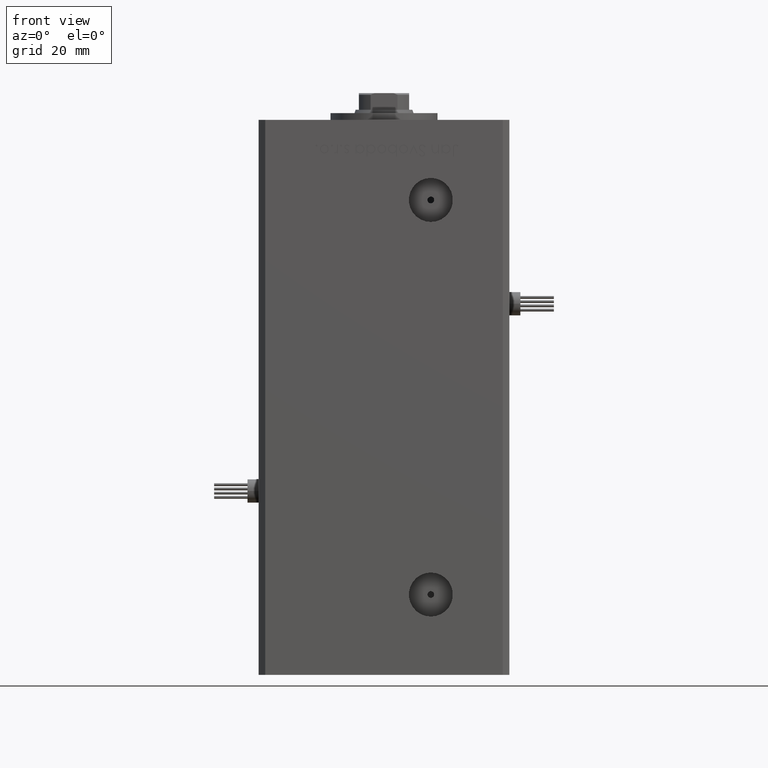
[diagram: clean part render]
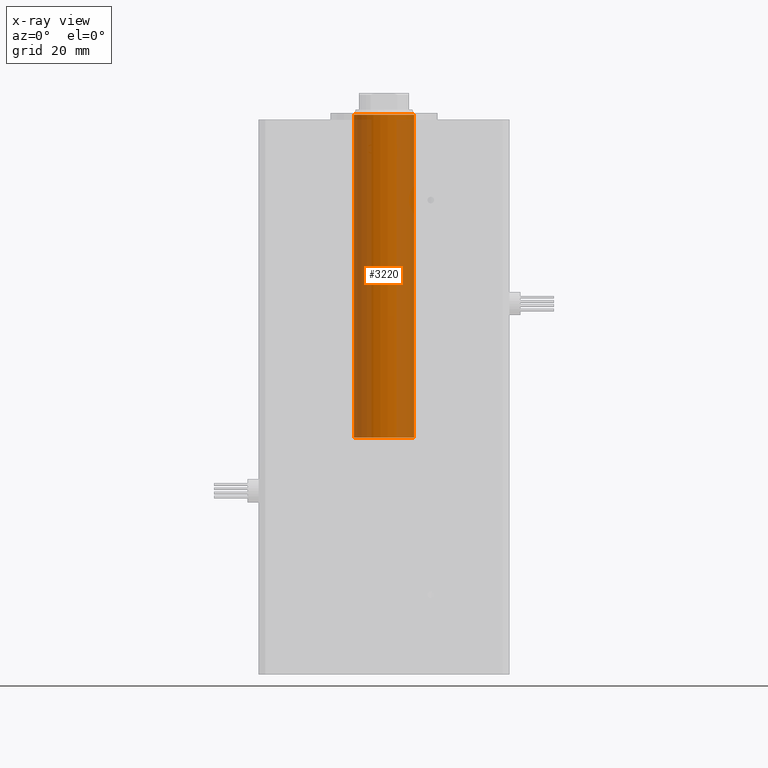
[diagram: x-ray — body ghosted, one internal face saturated and labeled with its STEP entity id]
A machine part, front view, then the same camera in x-ray: the body is ghosted and one INTERNAL B-rep face — a face not visible from any outside direction — is saturated and labeled: STEP entity #3220.
In plain terms, the highlighted cylindrical surface (edge-blend (fillet) strip) has radius 9 mm, axis along (-0, -0, 1).
Its self-contained STEP definition (entity closure, byte-faithful):
#65 = AXIS2_PLACEMENT_3D ( 'NONE', #26260, #51853, #50737 ) ;
#593 = CARTESIAN_POINT ( 'NONE',  ( -103.0000000000000000, 9.000000000000000000, 0.000000000000000000 ) ) ;
#2452 = CIRCLE ( 'NONE', #4237, 9.000000000000001776 ) ;
#3220 = ADVANCED_FACE ( 'NONE', ( #42414 ), #37956, .T. ) ;
#4237 = AXIS2_PLACEMENT_3D ( 'NONE', #18225, #9609, #51875 ) ;
#4819 = DIRECTION ( 'NONE',  ( 0.000000000000000000, 1.000000000000000000, 0.000000000000000000 ) ) ;
#6730 = LINE ( 'NONE', #15851, #25033 ) ;
#9101 = VECTOR ( 'NONE', #10735, 1000.000000000000000 ) ;
#9609 = DIRECTION ( 'NONE',  ( 1.000000000000000000, -9.892608450469889463E-18, -0.000000000000000000 ) ) ;
#9870 = EDGE_CURVE ( 'NONE', #23018, #28695, #2452, .T. ) ;
#10735 = DIRECTION ( 'NONE',  ( 1.000000000000000000, -9.892608450469889463E-18, -0.000000000000000000 ) ) ;
#15851 = CARTESIAN_POINT ( 'NONE',  ( 8.903347605422902212E-17, 9.000000000000000000, 0.000000000000000000 ) ) ;
#16486 = EDGE_LOOP ( 'NONE', ( #29653, #23281, #22375, #43440 ) ) ;
#16560 = VERTEX_POINT ( 'NONE', #593 ) ;
#17373 = VERTEX_POINT ( 'NONE', #29405 ) ;
#18225 = CARTESIAN_POINT ( 'NONE',  ( -6.500000000000000888, -1.670421521048752863E-15, 0.000000000000000000 ) ) ;
#19945 = AXIS2_PLACEMENT_3D ( 'NONE', #22006, #35076, #4819 ) ;
#22006 = CARTESIAN_POINT ( 'NONE',  ( -103.0000000000000000, -7.157848055784085830E-16, 0.000000000000000000 ) ) ;
#22375 = ORIENTED_EDGE ( 'NONE', *, *, #9870, .F. ) ;
#22613 = CIRCLE ( 'NONE', #19945, 9.000000000000000000 ) ;
#23018 = VERTEX_POINT ( 'NONE', #43537 ) ;
#23281 = ORIENTED_EDGE ( 'NONE', *, *, #50960, .T. ) ;
#24742 = DIRECTION ( 'NONE',  ( 1.000000000000000000, -9.892608450469889463E-18, -0.000000000000000000 ) ) ;
#25033 = VECTOR ( 'NONE', #24742, 1000.000000000000000 ) ;
#26260 = CARTESIAN_POINT ( 'NONE',  ( 0.000000000000000000, -1.734723475976807094E-15, 0.000000000000000000 ) ) ;
#28695 = VERTEX_POINT ( 'NONE', #29853 ) ;
#29405 = CARTESIAN_POINT ( 'NONE',  ( -103.0000000000000000, -9.000000000000000000, 1.102182119232617714E-15 ) ) ;
#29653 = ORIENTED_EDGE ( 'NONE', *, *, #37615, .T. ) ;
#29853 = CARTESIAN_POINT ( 'NONE',  ( -6.500000000000000888, -9.000000000000003553, 0.000000000000000000 ) ) ;
#35076 = DIRECTION ( 'NONE',  ( 1.000000000000000000, -9.892608450469889463E-18, -0.000000000000000000 ) ) ;
#37615 = EDGE_CURVE ( 'NONE', #16560, #17373, #22613, .T. ) ;
#37956 = CYLINDRICAL_SURFACE ( 'NONE', #65, 9.000000000000001776 ) ;
#39945 = CARTESIAN_POINT ( 'NONE',  ( -8.903347605422902212E-17, -9.000000000000003553, 1.102182119232617911E-15 ) ) ;
#42414 = FACE_OUTER_BOUND ( 'NONE', #16486, .T. ) ;
#43440 = ORIENTED_EDGE ( 'NONE', *, *, #52016, .F. ) ;
#43537 = CARTESIAN_POINT ( 'NONE',  ( -6.500000000000000888, 9.000000000000000000, 1.102182119232617911E-15 ) ) ;
#44121 = LINE ( 'NONE', #39945, #9101 ) ;
#50737 = DIRECTION ( 'NONE',  ( 9.892608450469889463E-18, 1.000000000000000000, 0.000000000000000000 ) ) ;
#50960 = EDGE_CURVE ( 'NONE', #17373, #28695, #44121, .T. ) ;
#51853 = DIRECTION ( 'NONE',  ( 1.000000000000000000, -9.892608450469889463E-18, -0.000000000000000000 ) ) ;
#51875 = DIRECTION ( 'NONE',  ( 0.000000000000000000, 1.000000000000000000, 0.000000000000000000 ) ) ;
#52016 = EDGE_CURVE ( 'NONE', #16560, #23018, #6730, .T. ) ;